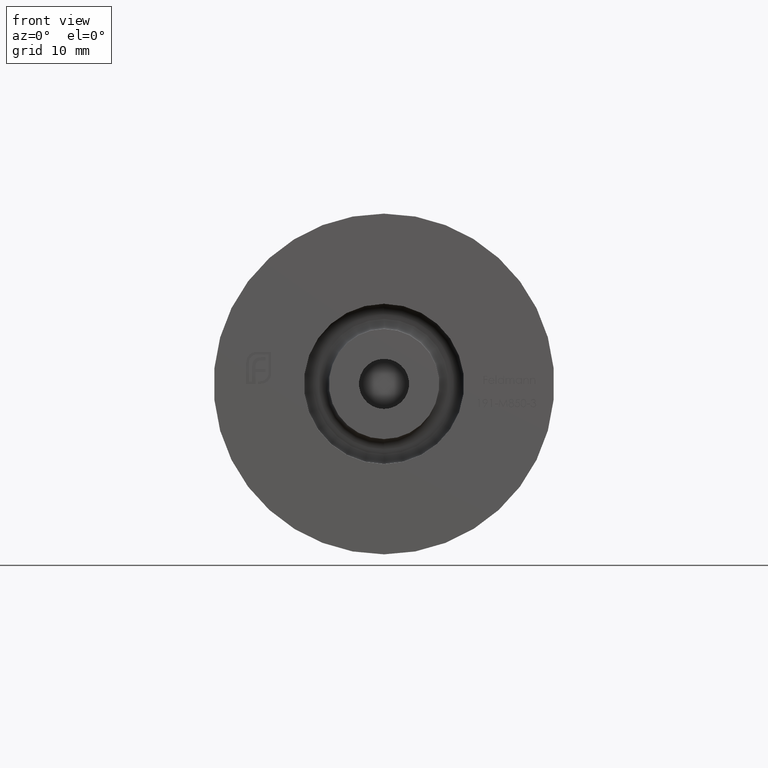
[diagram: clean part render]
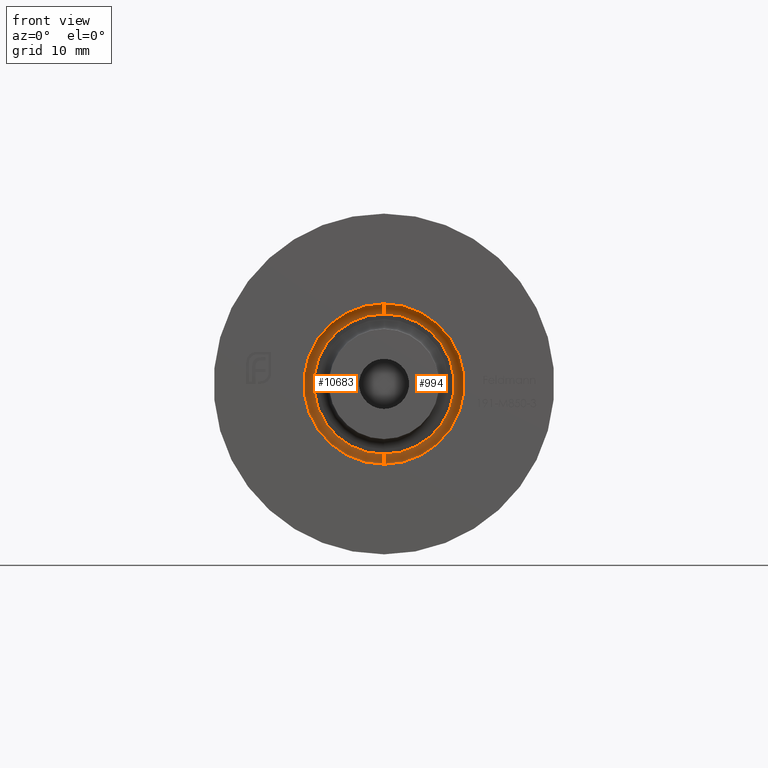
[diagram: same view with one multi-face feature highlighted, each face labeled with its STEP entity id]
A machine part, front view. The highlighted faces form ONE feature: a constant-radius fillet chain: 2 tangent blend faces with common blend radius 1 mm. The faces share edges in the B-rep.
Their STEP definitions:
[1] entity #994 (Torus):
#90 = DIRECTION ( 'NONE',  ( 0.000000000000000000, -1.000000000000000000, 0.000000000000000000 ) ) ;
#547 = CARTESIAN_POINT ( 'NONE',  ( 8.572527594031474176E-16, 2.000000000000000000, 7.000000000000001776 ) ) ;
#895 = EDGE_LOOP ( 'NONE', ( #10715, #6094, #13718, #6585 ) ) ;
#994 = ADVANCED_FACE ( 'NONE', ( #5014 ), #1770, .F. ) ;
#1369 = EDGE_CURVE ( 'NONE', #6853, #4932, #10871, .T. ) ;
#1714 = DIRECTION ( 'NONE',  ( 1.000000000000000000, 0.000000000000000000, -1.224646799147353207E-16 ) ) ;
#1732 = AXIS2_PLACEMENT_3D ( 'NONE', #10917, #3686, #14630 ) ;
#1770 = TOROIDAL_SURFACE ( 'NONE', #4453, 7.000000000000001776, 1.000000000000000000 ) ;
#3000 = DIRECTION ( 'NONE',  ( -1.224646799147353454E-16, 0.000000000000000000, -1.000000000000000000 ) ) ;
#3085 = CARTESIAN_POINT ( 'NONE',  ( 0.000000000000000000, 3.000000000000000000, -7.000000000000001776 ) ) ;
#3331 = VERTEX_POINT ( 'NONE', #7619 ) ;
#3667 = DIRECTION ( 'NONE',  ( -0.000000000000000000, 1.000000000000000000, -0.000000000000000000 ) ) ;
#3686 = DIRECTION ( 'NONE',  ( -1.000000000000000000, -0.000000000000000000, -0.000000000000000000 ) ) ;
#3751 = CIRCLE ( 'NONE', #6220, 1.000000000000000000 ) ;
#4453 = AXIS2_PLACEMENT_3D ( 'NONE', #7866, #12567, #6497 ) ;
#4887 = DIRECTION ( 'NONE',  ( 0.000000000000000000, 0.000000000000000000, -1.000000000000000000 ) ) ;
#4932 = VERTEX_POINT ( 'NONE', #4995 ) ;
#4995 = CARTESIAN_POINT ( 'NONE',  ( 0.000000000000000000, 2.000000000000000000, -8.000000000000001776 ) ) ;
#5014 = FACE_OUTER_BOUND ( 'NONE', #895, .T. ) ;
#5222 = AXIS2_PLACEMENT_3D ( 'NONE', #14576, #90, #7326 ) ;
#5420 = VERTEX_POINT ( 'NONE', #3085 ) ;
#5969 = EDGE_CURVE ( 'NONE', #5420, #4932, #11113, .T. ) ;
#6094 = ORIENTED_EDGE ( 'NONE', *, *, #11521, .F. ) ;
#6220 = AXIS2_PLACEMENT_3D ( 'NONE', #547, #1714, #3000 ) ;
#6497 = DIRECTION ( 'NONE',  ( 0.000000000000000000, 0.000000000000000000, -1.000000000000000000 ) ) ;
#6509 = CIRCLE ( 'NONE', #5222, 7.000000000000001776 ) ;
#6585 = ORIENTED_EDGE ( 'NONE', *, *, #1369, .F. ) ;
#6722 = EDGE_CURVE ( 'NONE', #3331, #6853, #3751, .T. ) ;
#6853 = VERTEX_POINT ( 'NONE', #10491 ) ;
#7326 = DIRECTION ( 'NONE',  ( 0.000000000000000000, 0.000000000000000000, -1.000000000000000000 ) ) ;
#7619 = CARTESIAN_POINT ( 'NONE',  ( 9.184850993605151889E-16, 3.000000000000000000, 7.000000000000001776 ) ) ;
#7866 = CARTESIAN_POINT ( 'NONE',  ( 0.000000000000000000, 2.000000000000000000, 0.000000000000000000 ) ) ;
#10491 = CARTESIAN_POINT ( 'NONE',  ( 9.797174393178827630E-16, 2.000000000000000000, 8.000000000000001776 ) ) ;
#10715 = ORIENTED_EDGE ( 'NONE', *, *, #6722, .F. ) ;
#10871 = CIRCLE ( 'NONE', #14191, 8.000000000000001776 ) ;
#10917 = CARTESIAN_POINT ( 'NONE',  ( 0.000000000000000000, 2.000000000000000000, -7.000000000000001776 ) ) ;
#11113 = CIRCLE ( 'NONE', #1732, 1.000000000000000000 ) ;
#11521 = EDGE_CURVE ( 'NONE', #5420, #3331, #6509, .T. ) ;
#12008 = CARTESIAN_POINT ( 'NONE',  ( 0.000000000000000000, 2.000000000000000000, 0.000000000000000000 ) ) ;
#12567 = DIRECTION ( 'NONE',  ( 0.000000000000000000, -1.000000000000000000, 0.000000000000000000 ) ) ;
#13718 = ORIENTED_EDGE ( 'NONE', *, *, #5969, .T. ) ;
#14191 = AXIS2_PLACEMENT_3D ( 'NONE', #12008, #3667, #4887 ) ;
#14576 = CARTESIAN_POINT ( 'NONE',  ( 0.000000000000000000, 3.000000000000000000, 0.000000000000000000 ) ) ;
#14630 = DIRECTION ( 'NONE',  ( 0.000000000000000000, 0.000000000000000000, 1.000000000000000000 ) ) ;
[2] entity #10683 (Torus):
#185 = CARTESIAN_POINT ( 'NONE',  ( 0.000000000000000000, 3.000000000000000000, 0.000000000000000000 ) ) ;
#457 = FACE_OUTER_BOUND ( 'NONE', #12097, .T. ) ;
#547 = CARTESIAN_POINT ( 'NONE',  ( 8.572527594031474176E-16, 2.000000000000000000, 7.000000000000001776 ) ) ;
#1153 = CIRCLE ( 'NONE', #12708, 7.000000000000001776 ) ;
#1714 = DIRECTION ( 'NONE',  ( 1.000000000000000000, 0.000000000000000000, -1.224646799147353207E-16 ) ) ;
#1732 = AXIS2_PLACEMENT_3D ( 'NONE', #10917, #3686, #14630 ) ;
#2947 = DIRECTION ( 'NONE',  ( 0.000000000000000000, 0.000000000000000000, -1.000000000000000000 ) ) ;
#2997 = DIRECTION ( 'NONE',  ( 0.000000000000000000, -1.000000000000000000, 0.000000000000000000 ) ) ;
#3000 = DIRECTION ( 'NONE',  ( -1.224646799147353454E-16, 0.000000000000000000, -1.000000000000000000 ) ) ;
#3085 = CARTESIAN_POINT ( 'NONE',  ( 0.000000000000000000, 3.000000000000000000, -7.000000000000001776 ) ) ;
#3310 = TOROIDAL_SURFACE ( 'NONE', #12908, 7.000000000000001776, 1.000000000000000000 ) ;
#3331 = VERTEX_POINT ( 'NONE', #7619 ) ;
#3686 = DIRECTION ( 'NONE',  ( -1.000000000000000000, -0.000000000000000000, -0.000000000000000000 ) ) ;
#3751 = CIRCLE ( 'NONE', #6220, 1.000000000000000000 ) ;
#3764 = CIRCLE ( 'NONE', #15601, 8.000000000000001776 ) ;
#4211 = ORIENTED_EDGE ( 'NONE', *, *, #5969, .F. ) ;
#4695 = EDGE_CURVE ( 'NONE', #4932, #6853, #3764, .T. ) ;
#4836 = CARTESIAN_POINT ( 'NONE',  ( 0.000000000000000000, 2.000000000000000000, 0.000000000000000000 ) ) ;
#4932 = VERTEX_POINT ( 'NONE', #4995 ) ;
#4995 = CARTESIAN_POINT ( 'NONE',  ( 0.000000000000000000, 2.000000000000000000, -8.000000000000001776 ) ) ;
#5056 = DIRECTION ( 'NONE',  ( 0.000000000000000000, -1.000000000000000000, 0.000000000000000000 ) ) ;
#5420 = VERTEX_POINT ( 'NONE', #3085 ) ;
#5969 = EDGE_CURVE ( 'NONE', #5420, #4932, #11113, .T. ) ;
#6220 = AXIS2_PLACEMENT_3D ( 'NONE', #547, #1714, #3000 ) ;
#6722 = EDGE_CURVE ( 'NONE', #3331, #6853, #3751, .T. ) ;
#6853 = VERTEX_POINT ( 'NONE', #10491 ) ;
#7619 = CARTESIAN_POINT ( 'NONE',  ( 9.184850993605151889E-16, 3.000000000000000000, 7.000000000000001776 ) ) ;
#8659 = DIRECTION ( 'NONE',  ( 0.000000000000000000, 0.000000000000000000, -1.000000000000000000 ) ) ;
#10491 = CARTESIAN_POINT ( 'NONE',  ( 9.797174393178827630E-16, 2.000000000000000000, 8.000000000000001776 ) ) ;
#10683 = ADVANCED_FACE ( 'NONE', ( #457 ), #3310, .F. ) ;
#10917 = CARTESIAN_POINT ( 'NONE',  ( 0.000000000000000000, 2.000000000000000000, -7.000000000000001776 ) ) ;
#11113 = CIRCLE ( 'NONE', #1732, 1.000000000000000000 ) ;
#12097 = EDGE_LOOP ( 'NONE', ( #14395, #12981, #15149, #4211 ) ) ;
#12708 = AXIS2_PLACEMENT_3D ( 'NONE', #185, #5056, #8659 ) ;
#12908 = AXIS2_PLACEMENT_3D ( 'NONE', #13796, #2997, #2947 ) ;
#12981 = ORIENTED_EDGE ( 'NONE', *, *, #6722, .T. ) ;
#13307 = DIRECTION ( 'NONE',  ( -0.000000000000000000, 1.000000000000000000, -0.000000000000000000 ) ) ;
#13796 = CARTESIAN_POINT ( 'NONE',  ( 0.000000000000000000, 2.000000000000000000, 0.000000000000000000 ) ) ;
#14347 = EDGE_CURVE ( 'NONE', #3331, #5420, #1153, .T. ) ;
#14395 = ORIENTED_EDGE ( 'NONE', *, *, #14347, .F. ) ;
#14630 = DIRECTION ( 'NONE',  ( 0.000000000000000000, 0.000000000000000000, 1.000000000000000000 ) ) ;
#15149 = ORIENTED_EDGE ( 'NONE', *, *, #4695, .F. ) ;
#15597 = DIRECTION ( 'NONE',  ( 0.000000000000000000, 0.000000000000000000, -1.000000000000000000 ) ) ;
#15601 = AXIS2_PLACEMENT_3D ( 'NONE', #4836, #13307, #15597 ) ;